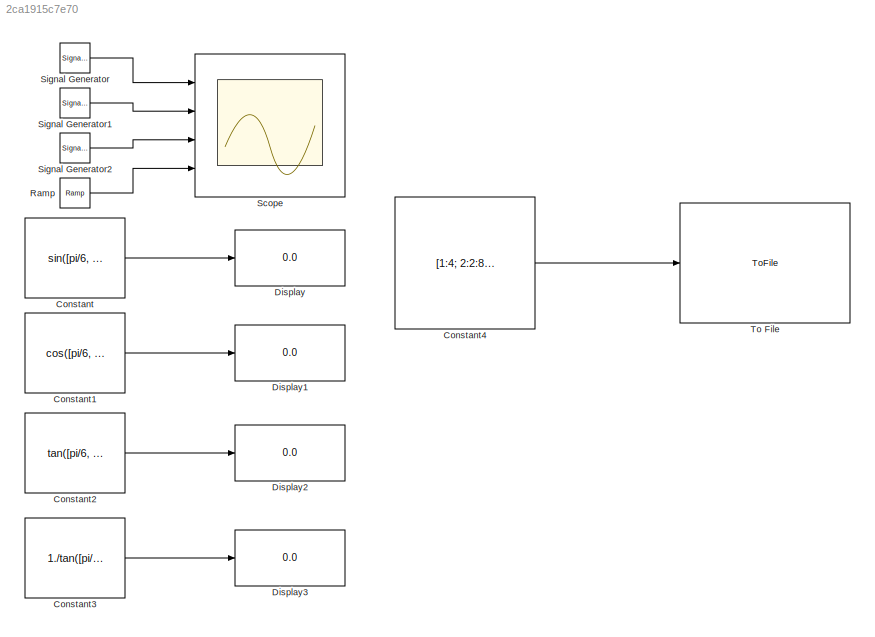
MODEL slx_2ca1915c7e70
KIND model
CONFIG AbsTol = auto
CONFIG EnableMultiTasking = off
CONFIG FixedStep = auto
CONFIG MaxStep = auto
CONFIG MinStep = auto
CONFIG RelTol = 1e-3
CONFIG SampleTimeConstraint = Unconstrained
CONFIG Solver = VariableStepAuto
CONFIG SolverName = VariableStepAuto
CONFIG StartTime = 0.0
CONFIG StopTime = 100
BLOCK [Constant] Constant
  Value = sin([pi/6, pi/4, pi/3])
BLOCK [Constant] Constant1
  Value = cos([pi/6, pi/4, pi/3])
BLOCK [Constant] Constant2
  Value = tan([pi/6, pi/4, pi/3])
BLOCK [Constant] Constant3
  Value = 1./tan([pi/6, pi/4, pi/3])
BLOCK [Constant] Constant4
  Value = [1:4; 2:2:8;3:3:9 7; 4 1 1 3]
BLOCK [Display] Display
  Decimation = 1
  Ports = [1]
BLOCK [Display] Display1
  Decimation = 1
  Ports = [1]
BLOCK [Display] Display2
  Decimation = 1
  Ports = [1]
BLOCK [Display] Display3
  Decimation = 1
  Ports = [1]
BLOCK [Reference] Ramp  REF=simulink/Sources/Ramp
  Ports = [0, 1]
  SourceBlock = simulink/Sources/Ramp
  SourceProductBaseCode = SL
  SourceProductName = Simulink
  SourceType = Ramp
BLOCK [Scope] Scope
  Floating = off
  NumInputPorts = 4
  Ports = [4]
  ScopeSpecificationString = Simulink.scopes.TimeScopeBlockCfg('CurrentConfiguration', extmgr.ConfigurationSet(extmgr.Configuration('Core','General UI',true),extmgr.Configuration('Core','Source UI',true),extmgr.Configuration('Sources','WiredSimulink',true),extmgr.Configuration('Visuals','Time Domain',true,'SerializedDisplays',{struct('MinYLimReal','-1.24646','MaxYLimReal','1.24913','YLabelReal','','MinYLimMag','0.00000','MaxY...<+3399ch>
BLOCK [SignalGenerator] Signal Generator
  Frequency = 0.2
  Ports = [0, 1]
  Units = rad/sec
BLOCK [SignalGenerator] Signal Generator1
  Frequency = 0.2
  Ports = [0, 1]
  Units = rad/sec
  WaveForm = square
BLOCK [SignalGenerator] Signal Generator2
  Frequency = 0.2
  Ports = [0, 1]
  Units = rad/sec
  WaveForm = sawtooth
BLOCK [ToFile] To File
  Filename = primer_upis.mat
  MatrixName = matrica_A
  Ports = [1]
LINE Constant1:1 -> Display1:1
LINE Constant2:1 -> Display2:1
LINE Constant3:1 -> Display3:1
LINE Constant4:1 -> To File:1
LINE Constant:1 -> Display:1
LINE Ramp:1 -> Scope:4
LINE Signal Generator1:1 -> Scope:2
LINE Signal Generator2:1 -> Scope:3
LINE Signal Generator:1 -> Scope:1
